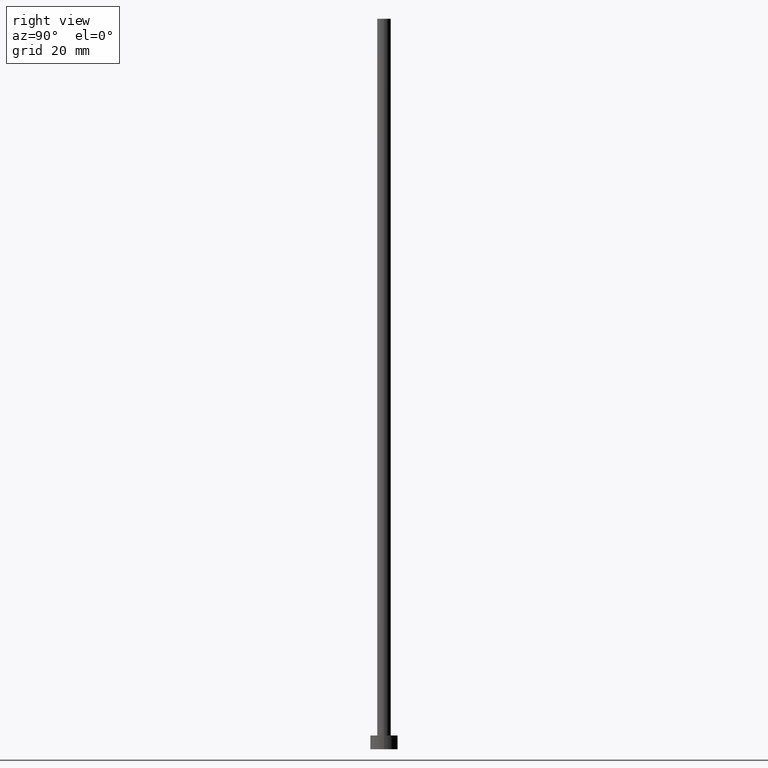
[diagram: clean part render]
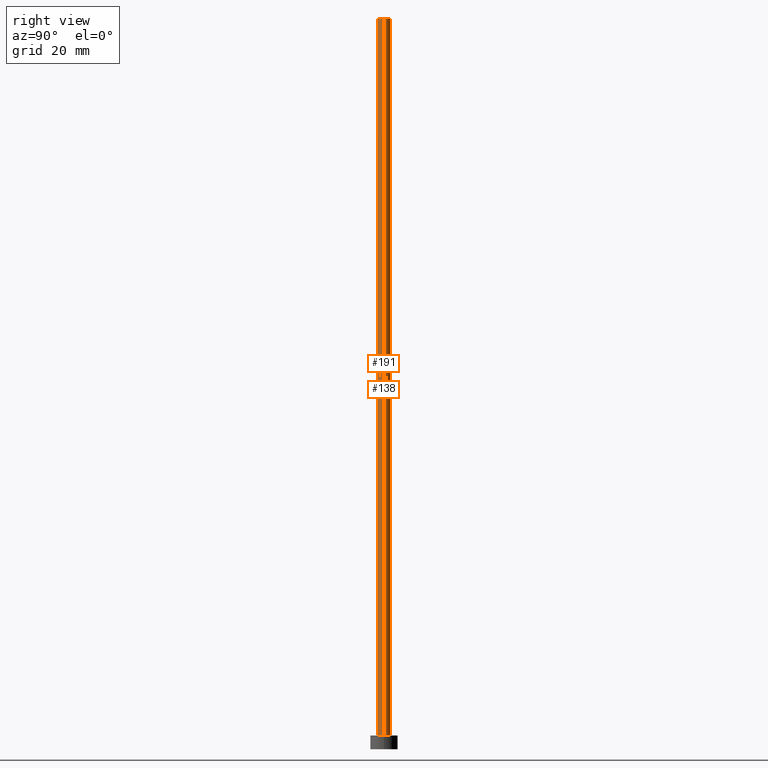
[diagram: same view with one multi-face feature highlighted, each face labeled with its STEP entity id]
A machine part, right view. The highlighted faces form ONE feature: a constant-radius fillet chain: 2 tangent blend faces with common blend radius 1.5 mm. The faces share edges in the B-rep.
Their STEP definitions:
[1] entity #138 (Cylinder):
#5 = CIRCLE ( 'NONE', #184, 1.500000000000000222 ) ;
#8 = ORIENTED_EDGE ( 'NONE', *, *, #59, .T. ) ;
#12 = CARTESIAN_POINT ( 'NONE',  ( 1.500000000000000222, 1.836970198721030181E-16, 3.000000000000000000 ) ) ;
#27 = DIRECTION ( 'NONE',  ( 1.000000000000000000, 0.000000000000000000, 0.000000000000000000 ) ) ;
#29 = LINE ( 'NONE', #31, #116 ) ;
#31 = CARTESIAN_POINT ( 'NONE',  ( -1.500000000000000222, 0.000000000000000000, 160.0000000000000000 ) ) ;
#34 = EDGE_CURVE ( 'NONE', #80, #205, #229, .T. ) ;
#59 = EDGE_CURVE ( 'NONE', #202, #187, #5, .T. ) ;
#67 = DIRECTION ( 'NONE',  ( -0.000000000000000000, -0.000000000000000000, -1.000000000000000000 ) ) ;
#80 = VERTEX_POINT ( 'NONE', #135 ) ;
#89 = CARTESIAN_POINT ( 'NONE',  ( -1.500000000000000222, 0.000000000000000000, 160.0000000000000000 ) ) ;
#102 = VECTOR ( 'NONE', #67, 1000.000000000000000 ) ;
#111 = ORIENTED_EDGE ( 'NONE', *, *, #243, .F. ) ;
#113 = DIRECTION ( 'NONE',  ( 0.000000000000000000, 0.000000000000000000, 1.000000000000000000 ) ) ;
#115 = DIRECTION ( 'NONE',  ( -0.000000000000000000, -0.000000000000000000, -1.000000000000000000 ) ) ;
#116 = VECTOR ( 'NONE', #197, 1000.000000000000000 ) ;
#119 = EDGE_CURVE ( 'NONE', #80, #202, #174, .T. ) ;
#127 = ORIENTED_EDGE ( 'NONE', *, *, #119, .T. ) ;
#132 = CARTESIAN_POINT ( 'NONE',  ( 0.000000000000000000, 0.000000000000000000, 3.000000000000000000 ) ) ;
#135 = CARTESIAN_POINT ( 'NONE',  ( 1.500000000000000222, 1.836970198721030181E-16, 160.0000000000000000 ) ) ;
#138 = ADVANCED_FACE ( 'NONE', ( #253 ), #150, .T. ) ;
#150 = CYLINDRICAL_SURFACE ( 'NONE', #196, 1.500000000000000222 ) ;
#151 = EDGE_LOOP ( 'NONE', ( #246, #127, #8, #111 ) ) ;
#153 = CARTESIAN_POINT ( 'NONE',  ( 1.500000000000000222, 1.836970198721030181E-16, 160.0000000000000000 ) ) ;
#174 = LINE ( 'NONE', #153, #102 ) ;
#176 = DIRECTION ( 'NONE',  ( 0.000000000000000000, 0.000000000000000000, 1.000000000000000000 ) ) ;
#179 = DIRECTION ( 'NONE',  ( 1.000000000000000000, 0.000000000000000000, 0.000000000000000000 ) ) ;
#184 = AXIS2_PLACEMENT_3D ( 'NONE', #132, #176, #179 ) ;
#187 = VERTEX_POINT ( 'NONE', #228 ) ;
#196 = AXIS2_PLACEMENT_3D ( 'NONE', #207, #115, #230 ) ;
#197 = DIRECTION ( 'NONE',  ( -0.000000000000000000, -0.000000000000000000, -1.000000000000000000 ) ) ;
#202 = VERTEX_POINT ( 'NONE', #12 ) ;
#203 = AXIS2_PLACEMENT_3D ( 'NONE', #232, #113, #27 ) ;
#205 = VERTEX_POINT ( 'NONE', #89 ) ;
#207 = CARTESIAN_POINT ( 'NONE',  ( 0.000000000000000000, 0.000000000000000000, 160.0000000000000000 ) ) ;
#228 = CARTESIAN_POINT ( 'NONE',  ( -1.500000000000000222, 0.000000000000000000, 3.000000000000000000 ) ) ;
#229 = CIRCLE ( 'NONE', #203, 1.500000000000000222 ) ;
#230 = DIRECTION ( 'NONE',  ( -1.000000000000000000, 0.000000000000000000, 0.000000000000000000 ) ) ;
#232 = CARTESIAN_POINT ( 'NONE',  ( 0.000000000000000000, 0.000000000000000000, 160.0000000000000000 ) ) ;
#243 = EDGE_CURVE ( 'NONE', #205, #187, #29, .T. ) ;
#246 = ORIENTED_EDGE ( 'NONE', *, *, #34, .F. ) ;
#253 = FACE_OUTER_BOUND ( 'NONE', #151, .T. ) ;
[2] entity #191 (Cylinder):
#6 = ORIENTED_EDGE ( 'NONE', *, *, #243, .T. ) ;
#12 = CARTESIAN_POINT ( 'NONE',  ( 1.500000000000000222, 1.836970198721030181E-16, 3.000000000000000000 ) ) ;
#25 = DIRECTION ( 'NONE',  ( 1.000000000000000000, 0.000000000000000000, 0.000000000000000000 ) ) ;
#26 = CYLINDRICAL_SURFACE ( 'NONE', #100, 1.500000000000000222 ) ;
#29 = LINE ( 'NONE', #31, #116 ) ;
#31 = CARTESIAN_POINT ( 'NONE',  ( -1.500000000000000222, 0.000000000000000000, 160.0000000000000000 ) ) ;
#40 = CIRCLE ( 'NONE', #107, 1.500000000000000222 ) ;
#41 = DIRECTION ( 'NONE',  ( 0.000000000000000000, 0.000000000000000000, 1.000000000000000000 ) ) ;
#42 = DIRECTION ( 'NONE',  ( 1.000000000000000000, 0.000000000000000000, 0.000000000000000000 ) ) ;
#60 = EDGE_LOOP ( 'NONE', ( #201, #222, #6, #62 ) ) ;
#62 = ORIENTED_EDGE ( 'NONE', *, *, #162, .T. ) ;
#67 = DIRECTION ( 'NONE',  ( -0.000000000000000000, -0.000000000000000000, -1.000000000000000000 ) ) ;
#80 = VERTEX_POINT ( 'NONE', #135 ) ;
#89 = CARTESIAN_POINT ( 'NONE',  ( -1.500000000000000222, 0.000000000000000000, 160.0000000000000000 ) ) ;
#100 = AXIS2_PLACEMENT_3D ( 'NONE', #118, #177, #114 ) ;
#102 = VECTOR ( 'NONE', #67, 1000.000000000000000 ) ;
#107 = AXIS2_PLACEMENT_3D ( 'NONE', #198, #41, #42 ) ;
#114 = DIRECTION ( 'NONE',  ( -1.000000000000000000, 0.000000000000000000, 0.000000000000000000 ) ) ;
#116 = VECTOR ( 'NONE', #197, 1000.000000000000000 ) ;
#118 = CARTESIAN_POINT ( 'NONE',  ( 0.000000000000000000, 0.000000000000000000, 160.0000000000000000 ) ) ;
#119 = EDGE_CURVE ( 'NONE', #80, #202, #174, .T. ) ;
#131 = CARTESIAN_POINT ( 'NONE',  ( 0.000000000000000000, 0.000000000000000000, 3.000000000000000000 ) ) ;
#135 = CARTESIAN_POINT ( 'NONE',  ( 1.500000000000000222, 1.836970198721030181E-16, 160.0000000000000000 ) ) ;
#153 = CARTESIAN_POINT ( 'NONE',  ( 1.500000000000000222, 1.836970198721030181E-16, 160.0000000000000000 ) ) ;
#155 = EDGE_CURVE ( 'NONE', #205, #80, #40, .T. ) ;
#162 = EDGE_CURVE ( 'NONE', #187, #202, #224, .T. ) ;
#174 = LINE ( 'NONE', #153, #102 ) ;
#177 = DIRECTION ( 'NONE',  ( -0.000000000000000000, -0.000000000000000000, -1.000000000000000000 ) ) ;
#187 = VERTEX_POINT ( 'NONE', #228 ) ;
#191 = ADVANCED_FACE ( 'NONE', ( #208 ), #26, .T. ) ;
#197 = DIRECTION ( 'NONE',  ( -0.000000000000000000, -0.000000000000000000, -1.000000000000000000 ) ) ;
#198 = CARTESIAN_POINT ( 'NONE',  ( 0.000000000000000000, 0.000000000000000000, 160.0000000000000000 ) ) ;
#201 = ORIENTED_EDGE ( 'NONE', *, *, #119, .F. ) ;
#202 = VERTEX_POINT ( 'NONE', #12 ) ;
#205 = VERTEX_POINT ( 'NONE', #89 ) ;
#208 = FACE_OUTER_BOUND ( 'NONE', #60, .T. ) ;
#222 = ORIENTED_EDGE ( 'NONE', *, *, #155, .F. ) ;
#224 = CIRCLE ( 'NONE', #255, 1.500000000000000222 ) ;
#228 = CARTESIAN_POINT ( 'NONE',  ( -1.500000000000000222, 0.000000000000000000, 3.000000000000000000 ) ) ;
#243 = EDGE_CURVE ( 'NONE', #205, #187, #29, .T. ) ;
#245 = DIRECTION ( 'NONE',  ( 0.000000000000000000, 0.000000000000000000, 1.000000000000000000 ) ) ;
#255 = AXIS2_PLACEMENT_3D ( 'NONE', #131, #245, #25 ) ;